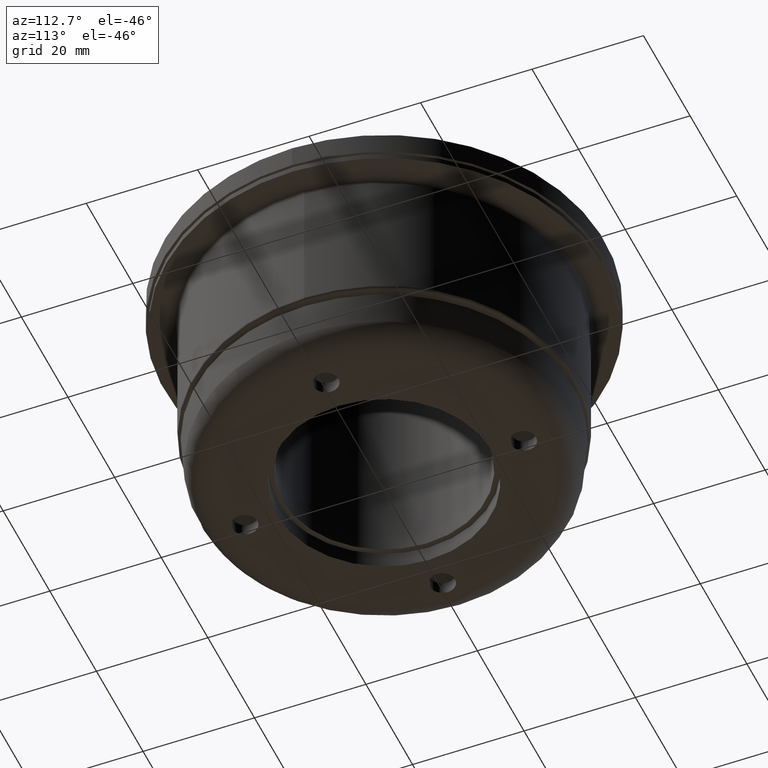
[diagram: clean part render]
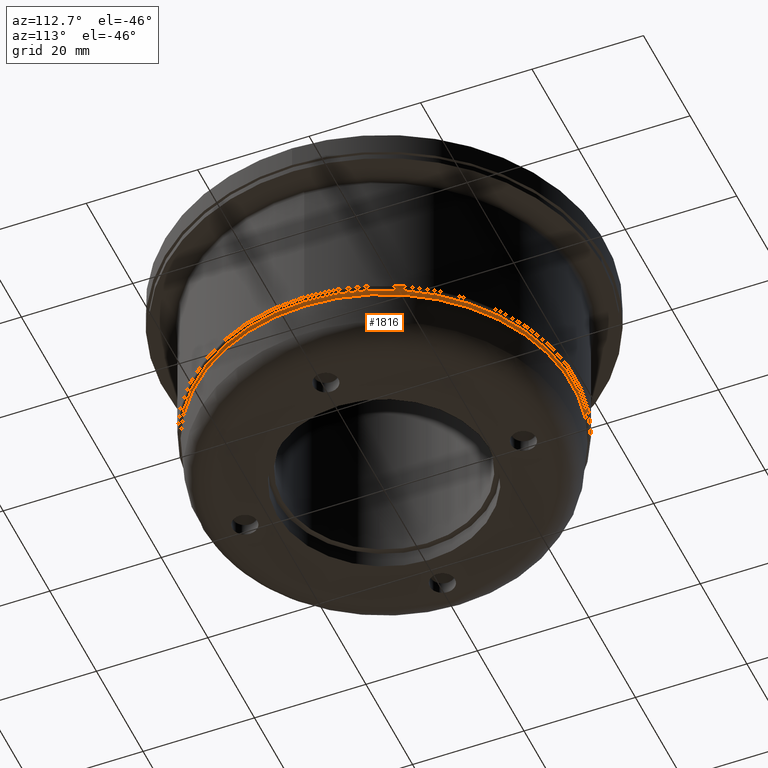
[diagram: same view with one face highlighted and labeled with its STEP entity id]
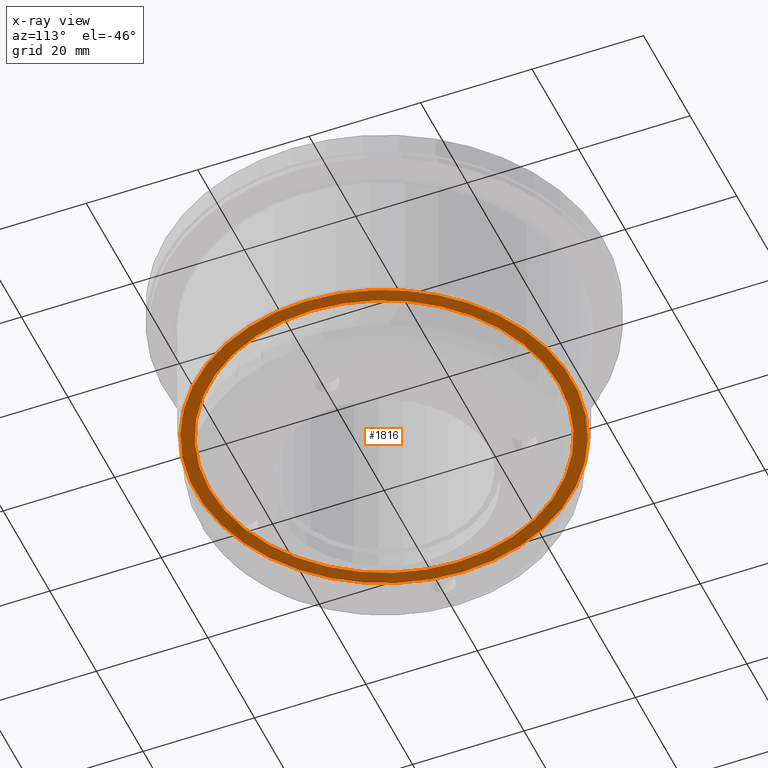
[diagram: x-ray of the same camera — body ghosted, the highlighted face saturated]
A machine part, auxiliary view. The second image highlights one B-rep face of the part: STEP entity #1816.
The next image is the same camera in x-ray: the body ghosted, the highlighted face saturated — about 43% of this face is hidden behind the body in this view.
In plain terms, the highlighted planar face has unit normal (0, 0, 1).
Its self-contained STEP definition (entity closure, byte-faithful):
#1774=CARTESIAN_POINT('',(33.750000000000007,4.688294E-015,7.999999999999995));
#1775=VERTEX_POINT('',#1774);
#1776=CARTESIAN_POINT('',(-5.551115E-016,5.551115E-016,7.999999999999995));
#1777=DIRECTION('',(0.0,0.0,1.0));
#1778=DIRECTION('',(-1.0,0.0,0.0));
#1779=AXIS2_PLACEMENT_3D('',#1776,#1777,#1778);
#1780=CIRCLE('',#1779,33.750000000000007);
#1781=EDGE_CURVE('',#1775,#1775,#1780,.T.);
#1797=CARTESIAN_POINT('',(0.0,31.725000000000001,7.999999999999995));
#1798=DIRECTION('',(0.0,0.0,1.0));
#1799=DIRECTION('',(1.0,0.0,0.0));
#1800=AXIS2_PLACEMENT_3D('',#1797,#1798,#1799);
#1801=PLANE('',#1800);
#1802=ORIENTED_EDGE('',*,*,#1781,.F.);
#1803=EDGE_LOOP('',(#1802));
#1804=FACE_OUTER_BOUND('',#1803,.T.);
#1805=CARTESIAN_POINT('',(-3.843268E-015,-31.382662348034852,7.999999999999995));
#1806=VERTEX_POINT('',#1805);
#1807=CARTESIAN_POINT('',(0.0,0.0,7.999999999999995));
#1808=DIRECTION('',(0.0,0.0,-1.0));
#1809=DIRECTION('',(0.0,1.0,0.0));
#1810=AXIS2_PLACEMENT_3D('',#1807,#1808,#1809);
#1811=CIRCLE('',#1810,31.382662348034852);
#1812=EDGE_CURVE('',#1806,#1806,#1811,.T.);
#1813=ORIENTED_EDGE('',*,*,#1812,.F.);
#1814=EDGE_LOOP('',(#1813));
#1815=FACE_BOUND('',#1814,.T.);
#1816=ADVANCED_FACE('',(#1804,#1815),#1801,.F.);